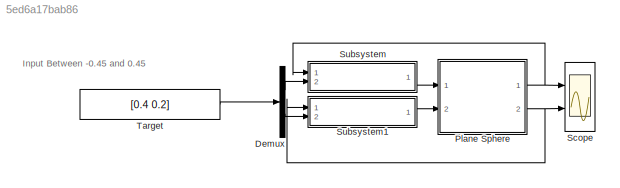
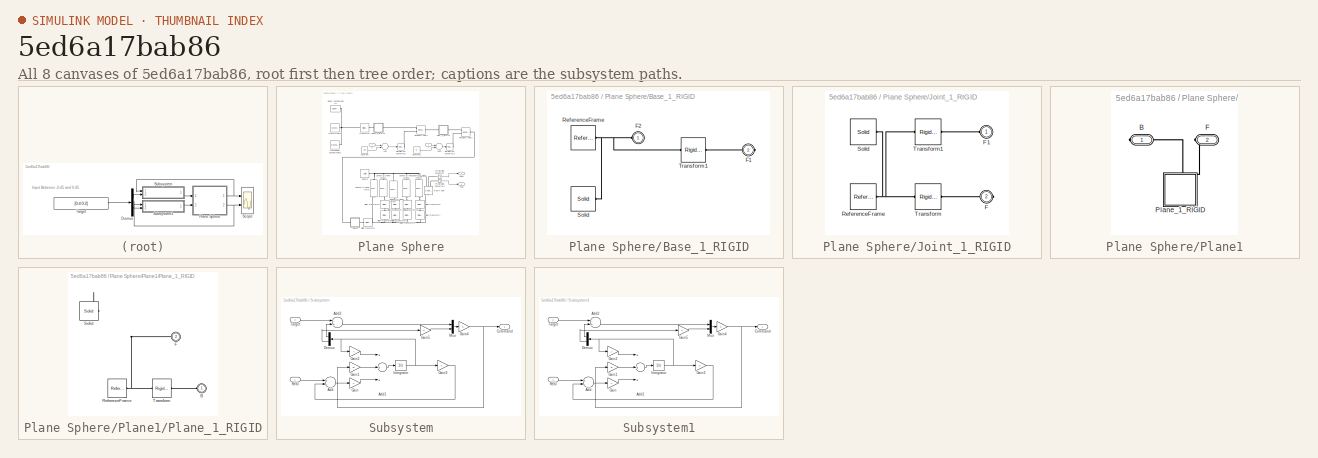
[diagram: thumbnail index - all 8 canvases of the model, root first then tree order]
MODEL slx_5ed6a17bab86
KIND model
CONFIG AbsTol = auto
CONFIG EnableMultiTasking = off
CONFIG FixedStep = auto
CONFIG MaxStep = auto
CONFIG MinStep = auto
CONFIG RelTol = 1e-3
CONFIG SampleTimeConstraint = Unconstrained
CONFIG Solver = ode15s
CONFIG SolverName = ode15s
CONFIG StartTime = 0.0
CONFIG StopTime = 10
WORKSPACE source: external: MATLAB File  (data not in archive)
BLOCK [Demux] Demux
  DisplayOption = bar
  Outputs = 2
  Ports = [1, 2]
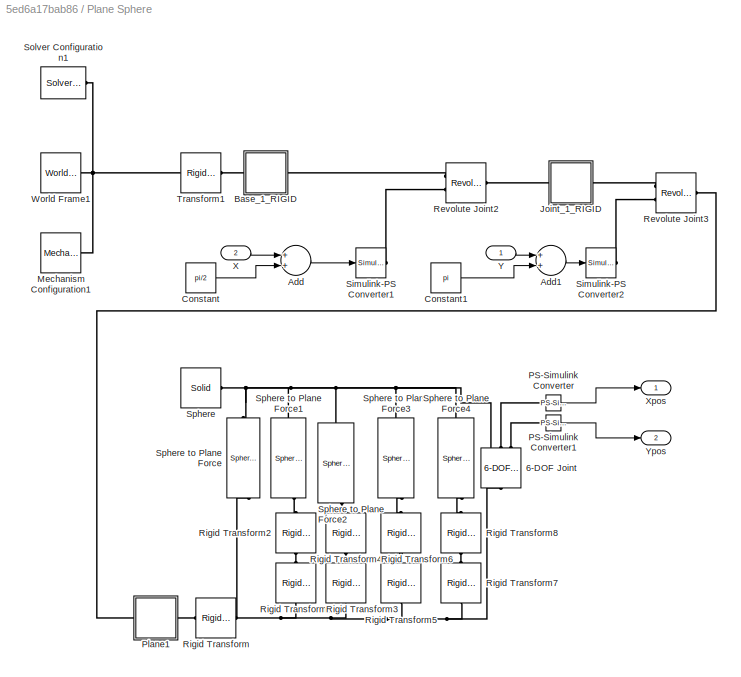
BLOCK [SubSystem] Plane Sphere
  Ports = [2, 2]
  RequestExecContextInheritance = off
BLOCK [Reference] Plane Sphere/6-DOF Joint  REF=sm_lib/Joints/6-DOF Joint
  Ports = [0, 0, 0, 0, 0, 1, 3]
  SourceBlock = sm_lib/Joints/6-DOF Joint
  SourceProductBaseCode = MS
  SourceProductName = Simscape Multibody
  SourceType = 6-DOF Joint
BLOCK [Sum] Plane Sphere/Add
  InputSameDT = off
  OutDataTypeStr = Inherit: Inherit via internal rule
  Ports = [2, 1]
  SaturateOnIntegerOverflow = off
BLOCK [Sum] Plane Sphere/Add1
  InputSameDT = off
  OutDataTypeStr = Inherit: Inherit via internal rule
  Ports = [2, 1]
  SaturateOnIntegerOverflow = off
BLOCK [SubSystem] Plane Sphere/Base_1_RIGID
  Ports = [0, 0, 0, 0, 0, 1, 1]
  RequestExecContextInheritance = off
BLOCK [PMIOPort] Plane Sphere/Base_1_RIGID/F1
  Port = 2
  Side = Right
BLOCK [PMIOPort] Plane Sphere/Base_1_RIGID/F2
  Side = Left
BLOCK [Reference] Plane Sphere/Base_1_RIGID/ReferenceFrame  REF=sm_lib/Frames and
Transforms/Reference
Frame
  Ports = [0, 0, 0, 0, 0, 0, 1]
  SourceBlock = sm_lib/Frames and\nTransforms/Reference\nFrame
  SourceProductBaseCode = MS
  SourceProductName = Simscape Multibody
  SourceType = Reference\nFrame
BLOCK [Reference] Plane Sphere/Base_1_RIGID/Solid  REF=sm_lib/Body Elements/Solid
  Ports = [0, 0, 0, 0, 0, 0, 1]
  SourceBlock = sm_lib/Body Elements/Solid
  SourceProductBaseCode = MS
  SourceProductName = Simscape Multibody
  SourceType = Solid
BLOCK [Reference] Plane Sphere/Base_1_RIGID/Transform1  REF=sm_lib/Frames and
Transforms/Rigid
Transform
  Ports = [0, 0, 0, 0, 0, 1, 1]
  SourceBlock = sm_lib/Frames and\nTransforms/Rigid\nTransform
  SourceProductBaseCode = MS
  SourceProductName = Simscape Multibody
  SourceType = Rigid\nTransform
BLOCK [Constant] Plane Sphere/Constant
  Value = pi/2
BLOCK [Constant] Plane Sphere/Constant1
  Value = pi
BLOCK [SubSystem] Plane Sphere/Joint_1_RIGID
  Ports = [0, 0, 0, 0, 0, 1, 1]
  RequestExecContextInheritance = off
BLOCK [PMIOPort] Plane Sphere/Joint_1_RIGID/F
  Port = 2
  Side = Right
BLOCK [PMIOPort] Plane Sphere/Joint_1_RIGID/F1
  Side = Left
BLOCK [Reference] Plane Sphere/Joint_1_RIGID/ReferenceFrame  REF=sm_lib/Frames and
Transforms/Reference
Frame
  Ports = [0, 0, 0, 0, 0, 0, 1]
  SourceBlock = sm_lib/Frames and\nTransforms/Reference\nFrame
  SourceProductBaseCode = MS
  SourceProductName = Simscape Multibody
  SourceType = Reference\nFrame
BLOCK [Reference] Plane Sphere/Joint_1_RIGID/Solid  REF=sm_lib/Body Elements/Solid
  Ports = [0, 0, 0, 0, 0, 0, 1]
  SourceBlock = sm_lib/Body Elements/Solid
  SourceProductBaseCode = MS
  SourceProductName = Simscape Multibody
  SourceType = Solid
BLOCK [Reference] Plane Sphere/Joint_1_RIGID/Transform  REF=sm_lib/Frames and
Transforms/Rigid
Transform
  Ports = [0, 0, 0, 0, 0, 1, 1]
  SourceBlock = sm_lib/Frames and\nTransforms/Rigid\nTransform
  SourceProductBaseCode = MS
  SourceProductName = Simscape Multibody
  SourceType = Rigid\nTransform
BLOCK [Reference] Plane Sphere/Joint_1_RIGID/Transform1  REF=sm_lib/Frames and
Transforms/Rigid
Transform
  Ports = [0, 0, 0, 0, 0, 1, 1]
  SourceBlock = sm_lib/Frames and\nTransforms/Rigid\nTransform
  SourceProductBaseCode = MS
  SourceProductName = Simscape Multibody
  SourceType = Rigid\nTransform
BLOCK [Reference] Plane Sphere/Mechanism Configuration1  REF=sm_lib/Utilities/Mechanism
Configuration
  Ports = [0, 0, 0, 0, 0, 0, 1]
  SourceBlock = sm_lib/Utilities/Mechanism\nConfiguration
  SourceProductBaseCode = MS
  SourceProductName = Simscape Multibody
  SourceType = Mechanism\nConfiguration
BLOCK [Reference] Plane Sphere/PS-Simulink Converter  REF=nesl_utility/PS-Simulink
Converter
  Ports = [0, 1, 0, 0, 0, 1]
  SourceBlock = nesl_utility/PS-Simulink\nConverter
  SourceProductBaseCode = SS
  SourceProductName = Simscape
  SourceType = PS-Simulink\nConverter
BLOCK [Reference] Plane Sphere/PS-Simulink Converter1  REF=nesl_utility/PS-Simulink
Converter
  Ports = [0, 1, 0, 0, 0, 1]
  SourceBlock = nesl_utility/PS-Simulink\nConverter
  SourceProductBaseCode = SS
  SourceProductName = Simscape
  SourceType = PS-Simulink\nConverter
BLOCK [SubSystem] Plane Sphere/Plane1
  Ports = [0, 0, 0, 0, 0, 1, 1]
  RequestExecContextInheritance = off
  Tag = CustomStyle
BLOCK [PMIOPort] Plane Sphere/Plane1/B
  Side = Right
BLOCK [PMIOPort] Plane Sphere/Plane1/F
  Port = 2
  Side = Left
BLOCK [SubSystem] Plane Sphere/Plane1/Plane_1_RIGID
  Ports = [0, 0, 0, 0, 0, 2]
  RequestExecContextInheritance = off
BLOCK [PMIOPort] Plane Sphere/Plane1/Plane_1_RIGID/B
  Side = Left
BLOCK [PMIOPort] Plane Sphere/Plane1/Plane_1_RIGID/F
  Port = 2
  Side = Left
BLOCK [Reference] Plane Sphere/Plane1/Plane_1_RIGID/ReferenceFrame  REF=sm_lib/Frames and
Transforms/Reference
Frame
  Ports = [0, 0, 0, 0, 0, 0, 1]
  SourceBlock = sm_lib/Frames and\nTransforms/Reference\nFrame
  SourceProductBaseCode = MS
  SourceProductName = Simscape Multibody
  SourceType = Reference\nFrame
BLOCK [Reference] Plane Sphere/Plane1/Plane_1_RIGID/Solid  REF=sm_lib/Body Elements/Solid
  Ports = [0, 0, 0, 0, 0, 0, 1]
  SourceBlock = sm_lib/Body Elements/Solid
  SourceProductBaseCode = MS
  SourceProductName = Simscape Multibody
  SourceType = Solid
BLOCK [Reference] Plane Sphere/Plane1/Plane_1_RIGID/Transform  REF=sm_lib/Frames and
Transforms/Rigid
Transform
  Ports = [0, 0, 0, 0, 0, 1, 1]
  SourceBlock = sm_lib/Frames and\nTransforms/Rigid\nTransform
  SourceProductBaseCode = MS
  SourceProductName = Simscape Multibody
  SourceType = Rigid\nTransform
BLOCK [Reference] Plane Sphere/Revolute Joint2  REF=sm_lib/Joints/Revolute Joint
  Ports = [0, 0, 0, 0, 0, 2, 1]
  SourceBlock = sm_lib/Joints/Revolute Joint
  SourceProductBaseCode = MS
  SourceProductName = Simscape Multibody
  SourceType = Revolute Joint
BLOCK [Reference] Plane Sphere/Revolute Joint3  REF=sm_lib/Joints/Revolute Joint
  Ports = [0, 0, 0, 0, 0, 2, 1]
  SourceBlock = sm_lib/Joints/Revolute Joint
  SourceProductBaseCode = MS
  SourceProductName = Simscape Multibody
  SourceType = Revolute Joint
BLOCK [Reference] Plane Sphere/Rigid Transform  REF=sm_lib/Frames and
Transforms/Rigid
Transform
  Ports = [0, 0, 0, 0, 0, 1, 1]
  SourceBlock = sm_lib/Frames and\nTransforms/Rigid\nTransform
  SourceProductBaseCode = MS
  SourceProductName = Simscape Multibody
  SourceType = Rigid\nTransform
BLOCK [Reference] Plane Sphere/Rigid Transform1  REF=sm_lib/Frames and
Transforms/Rigid
Transform
  Ports = [0, 0, 0, 0, 0, 1, 1]
  SourceBlock = sm_lib/Frames and\nTransforms/Rigid\nTransform
  SourceProductBaseCode = MS
  SourceProductName = Simscape Multibody
  SourceType = Rigid\nTransform
BLOCK [Reference] Plane Sphere/Rigid Transform2  REF=sm_lib/Frames and
Transforms/Rigid
Transform
  Ports = [0, 0, 0, 0, 0, 1, 1]
  SourceBlock = sm_lib/Frames and\nTransforms/Rigid\nTransform
  SourceProductBaseCode = MS
  SourceProductName = Simscape Multibody
  SourceType = Rigid\nTransform
BLOCK [Reference] Plane Sphere/Rigid Transform3  REF=sm_lib/Frames and
Transforms/Rigid
Transform
  Ports = [0, 0, 0, 0, 0, 1, 1]
  SourceBlock = sm_lib/Frames and\nTransforms/Rigid\nTransform
  SourceProductBaseCode = MS
  SourceProductName = Simscape Multibody
  SourceType = Rigid\nTransform
BLOCK [Reference] Plane Sphere/Rigid Transform4  REF=sm_lib/Frames and
Transforms/Rigid
Transform
  Ports = [0, 0, 0, 0, 0, 1, 1]
  SourceBlock = sm_lib/Frames and\nTransforms/Rigid\nTransform
  SourceProductBaseCode = MS
  SourceProductName = Simscape Multibody
  SourceType = Rigid\nTransform
BLOCK [Reference] Plane Sphere/Rigid Transform5  REF=sm_lib/Frames and
Transforms/Rigid
Transform
  Ports = [0, 0, 0, 0, 0, 1, 1]
  SourceBlock = sm_lib/Frames and\nTransforms/Rigid\nTransform
  SourceProductBaseCode = MS
  SourceProductName = Simscape Multibody
  SourceType = Rigid\nTransform
BLOCK [Reference] Plane Sphere/Rigid Transform6  REF=sm_lib/Frames and
Transforms/Rigid
Transform
  Ports = [0, 0, 0, 0, 0, 1, 1]
  SourceBlock = sm_lib/Frames and\nTransforms/Rigid\nTransform
  SourceProductBaseCode = MS
  SourceProductName = Simscape Multibody
  SourceType = Rigid\nTransform
BLOCK [Reference] Plane Sphere/Rigid Transform7  REF=sm_lib/Frames and
Transforms/Rigid
Transform
  Ports = [0, 0, 0, 0, 0, 1, 1]
  SourceBlock = sm_lib/Frames and\nTransforms/Rigid\nTransform
  SourceProductBaseCode = MS
  SourceProductName = Simscape Multibody
  SourceType = Rigid\nTransform
BLOCK [Reference] Plane Sphere/Rigid Transform8  REF=sm_lib/Frames and
Transforms/Rigid
Transform
  Ports = [0, 0, 0, 0, 0, 1, 1]
  SourceBlock = sm_lib/Frames and\nTransforms/Rigid\nTransform
  SourceProductBaseCode = MS
  SourceProductName = Simscape Multibody
  SourceType = Rigid\nTransform
BLOCK [Reference] Plane Sphere/Simulink-PS Converter1  REF=nesl_utility/Simulink-PS
Converter
  Ports = [1, 0, 0, 0, 0, 0, 1]
  SourceBlock = nesl_utility/Simulink-PS\nConverter
  SourceProductBaseCode = SS
  SourceProductName = Simscape
  SourceType = Simulink-PS\nConverter
BLOCK [Reference] Plane Sphere/Simulink-PS Converter2  REF=nesl_utility/Simulink-PS
Converter
  Ports = [1, 0, 0, 0, 0, 0, 1]
  SourceBlock = nesl_utility/Simulink-PS\nConverter
  SourceProductBaseCode = SS
  SourceProductName = Simscape
  SourceType = Simulink-PS\nConverter
BLOCK [Reference] Plane Sphere/Solver Configuration1  REF=nesl_utility/Solver
Configuration
  Ports = [0, 0, 0, 0, 0, 0, 1]
  SourceBlock = nesl_utility/Solver\nConfiguration
  SourceProductBaseCode = SS
  SourceProductName = Simscape
  SourceType = Solver\nConfiguration
BLOCK [Reference] Plane Sphere/Sphere  REF=sm_lib/Body Elements/Solid
  Ports = [0, 0, 0, 0, 0, 0, 1]
  SourceBlock = sm_lib/Body Elements/Solid
  SourceProductBaseCode = MS
  SourceProductName = Simscape Multibody
  SourceType = Solid
BLOCK [Reference] Plane Sphere/Sphere to Plane Force  REF=Contact_Forces_Lib/3D/Sphere to Plane Force
  Ports = [0, 1, 0, 0, 0, 1, 1]
  SourceBlock = Contact_Forces_Lib/3D/Sphere to Plane Force
  SourceProductName = Simscape Multibody Contact Forces Library
  SourceType = Sphere to Plane Force
BLOCK [Reference] Plane Sphere/Sphere to Plane Force1  REF=Contact_Forces_Lib/3D/Sphere to Plane Force
  Ports = [0, 1, 0, 0, 0, 1, 1]
  SourceBlock = Contact_Forces_Lib/3D/Sphere to Plane Force
  SourceProductName = Simscape Multibody Contact Forces Library
  SourceType = Sphere to Plane Force
BLOCK [Reference] Plane Sphere/Sphere to Plane Force2  REF=Contact_Forces_Lib/3D/Sphere to Plane Force
  Ports = [0, 1, 0, 0, 0, 1, 1]
  SourceBlock = Contact_Forces_Lib/3D/Sphere to Plane Force
  SourceProductName = Simscape Multibody Contact Forces Library
  SourceType = Sphere to Plane Force
BLOCK [Reference] Plane Sphere/Sphere to Plane Force3  REF=Contact_Forces_Lib/3D/Sphere to Plane Force
  Ports = [0, 1, 0, 0, 0, 1, 1]
  SourceBlock = Contact_Forces_Lib/3D/Sphere to Plane Force
  SourceProductName = Simscape Multibody Contact Forces Library
  SourceType = Sphere to Plane Force
BLOCK [Reference] Plane Sphere/Sphere to Plane Force4  REF=Contact_Forces_Lib/3D/Sphere to Plane Force
  Ports = [0, 1, 0, 0, 0, 1, 1]
  SourceBlock = Contact_Forces_Lib/3D/Sphere to Plane Force
  SourceProductName = Simscape Multibody Contact Forces Library
  SourceType = Sphere to Plane Force
BLOCK [Reference] Plane Sphere/Transform1  REF=sm_lib/Frames and
Transforms/Rigid
Transform
  Ports = [0, 0, 0, 0, 0, 1, 1]
  SourceBlock = sm_lib/Frames and\nTransforms/Rigid\nTransform
  SourceProductBaseCode = MS
  SourceProductName = Simscape Multibody
  SourceType = Rigid\nTransform
BLOCK [Reference] Plane Sphere/World Frame1  REF=sm_lib/Frames and
Transforms/World Frame
  Ports = [0, 0, 0, 0, 0, 0, 1]
  SourceBlock = sm_lib/Frames and\nTransforms/World Frame
  SourceProductBaseCode = MS
  SourceProductName = Simscape Multibody
  SourceType = World Frame
BLOCK [Inport] Plane Sphere/X
  IconDisplay = Port number
  Port = 2
BLOCK [Outport] Plane Sphere/Xpos
  IconDisplay = Port number
BLOCK [Inport] Plane Sphere/Y
  IconDisplay = Port number
BLOCK [Outport] Plane Sphere/Ypos
  IconDisplay = Port number
  Port = 2
BLOCK [Scope] Scope
  Floating = off
  NumInputPorts = 2
  Ports = [2]
  ScopeSpecificationString = Simulink.scopes.TimeScopeBlockCfg('CurrentConfiguration', extmgr.ConfigurationSet(extmgr.Configuration('Core','General UI',true),extmgr.Configuration('Core','Source UI',true),extmgr.Configuration('Sources','WiredSimulink',true),extmgr.Configuration('Visuals','Time Domain',true,'SerializedDisplays',{struct('MinYLimReal','-0.05226','MaxYLimReal','0.46259','YLabelReal','','MinYLimMag','0.00000','MaxY...<+2084ch>
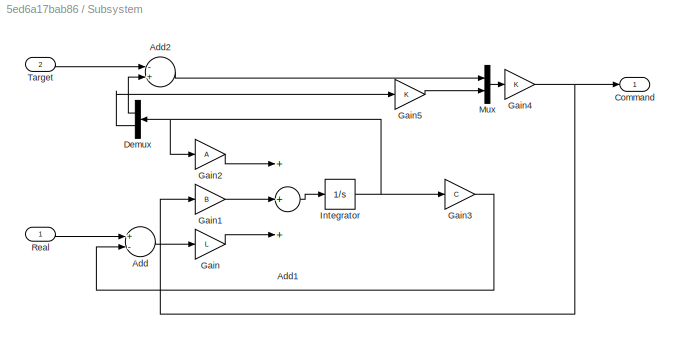
BLOCK [SubSystem] Subsystem
  Ports = [2, 1]
  RequestExecContextInheritance = off
BLOCK [Sum] Subsystem/Add
  InputSameDT = off
  Inputs = +-
  OutDataTypeStr = Inherit: Inherit via internal rule
  Ports = [2, 1]
  SaturateOnIntegerOverflow = off
BLOCK [Sum] Subsystem/Add1
  InputSameDT = off
  Inputs = +++
  OutDataTypeStr = Inherit: Inherit via internal rule
  Ports = [3, 1]
  SaturateOnIntegerOverflow = off
BLOCK [Sum] Subsystem/Add2
  InputSameDT = off
  Inputs = -+
  OutDataTypeStr = Inherit: Inherit via internal rule
  Ports = [2, 1]
  SaturateOnIntegerOverflow = off
BLOCK [Outport] Subsystem/Command
  IconDisplay = Port number
BLOCK [Demux] Subsystem/Demux
  DisplayOption = bar
  Outputs = 2
  Ports = [1, 2]
BLOCK [Gain] Subsystem/Gain
  Gain = L
  Multiplication = Matrix(K*u)
  OutDataTypeStr = Inherit: Inherit via internal rule
  ParamDataTypeStr = Inherit: Inherit via internal rule
  SaturateOnIntegerOverflow = off
BLOCK [Gain] Subsystem/Gain1
  Gain = B
  Multiplication = Matrix(K*u)
  OutDataTypeStr = Inherit: Inherit via internal rule
  ParamDataTypeStr = Inherit: Inherit via internal rule
  SaturateOnIntegerOverflow = off
BLOCK [Gain] Subsystem/Gain2
  Gain = A
  Multiplication = Matrix(K*u)
  OutDataTypeStr = Inherit: Inherit via internal rule
  ParamDataTypeStr = Inherit: Inherit via internal rule
  SaturateOnIntegerOverflow = off
BLOCK [Gain] Subsystem/Gain3
  Gain = C
  Multiplication = Matrix(K*u)
  OutDataTypeStr = Inherit: Inherit via internal rule
  ParamDataTypeStr = Inherit: Inherit via internal rule
  SaturateOnIntegerOverflow = off
BLOCK [Gain] Subsystem/Gain4
  Gain = K
  Multiplication = Matrix(K*u)
  OutDataTypeStr = Inherit: Inherit via internal rule
  ParamDataTypeStr = Inherit: Inherit via internal rule
  SaturateOnIntegerOverflow = off
BLOCK [Gain] Subsystem/Gain5
  OutDataTypeStr = Inherit: Inherit via internal rule
  ParamDataTypeStr = Inherit: Inherit via internal rule
  SaturateOnIntegerOverflow = off
BLOCK [Integrator] Subsystem/Integrator
  Ports = [1, 1]
BLOCK [Mux] Subsystem/Mux
  DisplayOption = bar
  Inputs = 2
  Ports = [2, 1]
BLOCK [Inport] Subsystem/Real
  IconDisplay = Port number
BLOCK [Inport] Subsystem/Target
  IconDisplay = Port number
  Port = 2
BLOCK [SubSystem] Subsystem1
  Ports = [2, 1]
  RequestExecContextInheritance = off
BLOCK [Sum] Subsystem1/Add
  InputSameDT = off
  Inputs = +-
  OutDataTypeStr = Inherit: Inherit via internal rule
  Ports = [2, 1]
  SaturateOnIntegerOverflow = off
BLOCK [Sum] Subsystem1/Add1
  InputSameDT = off
  Inputs = +++
  OutDataTypeStr = Inherit: Inherit via internal rule
  Ports = [3, 1]
  SaturateOnIntegerOverflow = off
BLOCK [Sum] Subsystem1/Add2
  InputSameDT = off
  Inputs = -+
  OutDataTypeStr = Inherit: Inherit via internal rule
  Ports = [2, 1]
  SaturateOnIntegerOverflow = off
BLOCK [Outport] Subsystem1/Command
  IconDisplay = Port number
BLOCK [Demux] Subsystem1/Demux
  DisplayOption = bar
  Outputs = 2
  Ports = [1, 2]
BLOCK [Gain] Subsystem1/Gain
  Gain = L
  Multiplication = Matrix(K*u)
  OutDataTypeStr = Inherit: Inherit via internal rule
  ParamDataTypeStr = Inherit: Inherit via internal rule
  SaturateOnIntegerOverflow = off
BLOCK [Gain] Subsystem1/Gain1
  Gain = B
  Multiplication = Matrix(K*u)
  OutDataTypeStr = Inherit: Inherit via internal rule
  ParamDataTypeStr = Inherit: Inherit via internal rule
  SaturateOnIntegerOverflow = off
BLOCK [Gain] Subsystem1/Gain2
  Gain = A
  Multiplication = Matrix(K*u)
  OutDataTypeStr = Inherit: Inherit via internal rule
  ParamDataTypeStr = Inherit: Inherit via internal rule
  SaturateOnIntegerOverflow = off
BLOCK [Gain] Subsystem1/Gain3
  Gain = C
  Multiplication = Matrix(K*u)
  OutDataTypeStr = Inherit: Inherit via internal rule
  ParamDataTypeStr = Inherit: Inherit via internal rule
  SaturateOnIntegerOverflow = off
BLOCK [Gain] Subsystem1/Gain4
  Gain = K
  Multiplication = Matrix(K*u)
  OutDataTypeStr = Inherit: Inherit via internal rule
  ParamDataTypeStr = Inherit: Inherit via internal rule
  SaturateOnIntegerOverflow = off
BLOCK [Gain] Subsystem1/Gain5
  OutDataTypeStr = Inherit: Inherit via internal rule
  ParamDataTypeStr = Inherit: Inherit via internal rule
  SaturateOnIntegerOverflow = off
BLOCK [Integrator] Subsystem1/Integrator
  Ports = [1, 1]
BLOCK [Mux] Subsystem1/Mux
  DisplayOption = bar
  Inputs = 2
  Ports = [2, 1]
BLOCK [Inport] Subsystem1/Real
  IconDisplay = Port number
BLOCK [Inport] Subsystem1/Target
  IconDisplay = Port number
  Port = 2
BLOCK [Constant] Target
  Value = [0.4 0.2]
ANNOTATION (root): Input Between -0.45 and 0.45
LINE Demux:1 -> Subsystem:2
LINE Demux:2 -> Subsystem1:2
LINE Plane Sphere/Add1:1 -> Plane Sphere/Simulink-PS Converter2:1
LINE Plane Sphere/Add:1 -> Plane Sphere/Simulink-PS Converter1:1
LINE Plane Sphere/Constant1:1 -> Plane Sphere/Add1:2
LINE Plane Sphere/Constant:1 -> Plane Sphere/Add:2
LINE Plane Sphere/PS-Simulink Converter1:1 -> Plane Sphere/Ypos:1
LINE Plane Sphere/PS-Simulink Converter:1 -> Plane Sphere/Xpos:1
LINE Plane Sphere/X:1 -> Plane Sphere/Add:1
LINE Plane Sphere/Y:1 -> Plane Sphere/Add1:1
NET Plane Sphere:1 -> Scope:1, Subsystem:1
NET Plane Sphere:2 -> Scope:2, Subsystem1:1
LINE Subsystem/Add1:1 -> Subsystem/Integrator:1
LINE Subsystem/Add2:1 -> Subsystem/Mux:1
LINE Subsystem/Add:1 -> Subsystem/Gain:1
LINE Subsystem/Demux:1 -> Subsystem/Add2:2
LINE Subsystem/Demux:2 -> Subsystem/Gain5:1
LINE Subsystem/Gain1:1 -> Subsystem/Add1:2
LINE Subsystem/Gain2:1 -> Subsystem/Add1:1
LINE Subsystem/Gain3:1 -> Subsystem/Add:2
NET Subsystem/Gain4:1 -> Subsystem/Command:1, Subsystem/Gain1:1
LINE Subsystem/Gain5:1 -> Subsystem/Mux:2
LINE Subsystem/Gain:1 -> Subsystem/Add1:3
NET Subsystem/Integrator:1 -> Subsystem/Demux:1, Subsystem/Gain2:1, Subsystem/Gain3:1
LINE Subsystem/Mux:1 -> Subsystem/Gain4:1
LINE Subsystem/Real:1 -> Subsystem/Add:1
LINE Subsystem/Target:1 -> Subsystem/Add2:1
LINE Subsystem1/Add1:1 -> Subsystem1/Integrator:1
LINE Subsystem1/Add2:1 -> Subsystem1/Mux:1
LINE Subsystem1/Add:1 -> Subsystem1/Gain:1
LINE Subsystem1/Demux:1 -> Subsystem1/Add2:2
LINE Subsystem1/Demux:2 -> Subsystem1/Gain5:1
LINE Subsystem1/Gain1:1 -> Subsystem1/Add1:2
LINE Subsystem1/Gain2:1 -> Subsystem1/Add1:1
LINE Subsystem1/Gain3:1 -> Subsystem1/Add:2
NET Subsystem1/Gain4:1 -> Subsystem1/Command:1, Subsystem1/Gain1:1
LINE Subsystem1/Gain5:1 -> Subsystem1/Mux:2
LINE Subsystem1/Gain:1 -> Subsystem1/Add1:3
NET Subsystem1/Integrator:1 -> Subsystem1/Demux:1, Subsystem1/Gain2:1, Subsystem1/Gain3:1
LINE Subsystem1/Mux:1 -> Subsystem1/Gain4:1
LINE Subsystem1/Real:1 -> Subsystem1/Add:1
LINE Subsystem1/Target:1 -> Subsystem1/Add2:1
LINE Subsystem1:1 -> Plane Sphere:2
LINE Subsystem:1 -> Plane Sphere:1
LINE Target:1 -> Demux:1
PNET net1: Plane Sphere/6-DOF Joint:LConn1 -- Plane Sphere/Rigid Transform1:LConn1 -- Plane Sphere/Rigid Transform3:LConn1 -- Plane Sphere/Rigid Transform5:LConn1 -- Plane Sphere/Rigid Transform7:LConn1 -- Plane Sphere/Rigid Transform:RConn1 -- Plane Sphere/Sphere to Plane Force:RConn1
PNET net2: Plane Sphere/6-DOF Joint:RConn1 -- Plane Sphere/Sphere to Plane Force1:LConn1 -- Plane Sphere/Sphere to Plane Force2:LConn1 -- Plane Sphere/Sphere to Plane Force3:LConn1 -- Plane Sphere/Sphere to Plane Force4:LConn1 -- Plane Sphere/Sphere to Plane Force:LConn1 -- Plane Sphere/Sphere:RConn1
PLINE Plane Sphere/6-DOF Joint:RConn2 -- Plane Sphere/PS-Simulink Converter:LConn1
PLINE Plane Sphere/6-DOF Joint:RConn3 -- Plane Sphere/PS-Simulink Converter1:LConn1
PLINE Plane Sphere/Base_1_RIGID/F1:RConn1 -- Plane Sphere/Base_1_RIGID/Transform1:RConn1
PNET net3: Plane Sphere/Base_1_RIGID/F2:RConn1 -- Plane Sphere/Base_1_RIGID/ReferenceFrame:RConn1 -- Plane Sphere/Base_1_RIGID/Solid:RConn1 -- Plane Sphere/Base_1_RIGID/Transform1:LConn1
PLINE Plane Sphere/Base_1_RIGID:LConn1 -- Plane Sphere/Transform1:RConn1
PLINE Plane Sphere/Base_1_RIGID:RConn1 -- Plane Sphere/Revolute Joint2:LConn1
PLINE Plane Sphere/Joint_1_RIGID/F1:RConn1 -- Plane Sphere/Joint_1_RIGID/Transform1:RConn1
PLINE Plane Sphere/Joint_1_RIGID/F:RConn1 -- Plane Sphere/Joint_1_RIGID/Transform:RConn1
PNET net4: Plane Sphere/Joint_1_RIGID/ReferenceFrame:RConn1 -- Plane Sphere/Joint_1_RIGID/Solid:RConn1 -- Plane Sphere/Joint_1_RIGID/Transform1:LConn1 -- Plane Sphere/Joint_1_RIGID/Transform:LConn1
PLINE Plane Sphere/Joint_1_RIGID:LConn1 -- Plane Sphere/Revolute Joint2:RConn1
PLINE Plane Sphere/Joint_1_RIGID:RConn1 -- Plane Sphere/Revolute Joint3:LConn1
PNET net5: Plane Sphere/Mechanism Configuration1:RConn1 -- Plane Sphere/Solver Configuration1:RConn1 -- Plane Sphere/Transform1:LConn1 -- Plane Sphere/World Frame1:RConn1
PLINE Plane Sphere/Plane1/B:RConn1 -- Plane Sphere/Plane1/Plane_1_RIGID:LConn1
PLINE Plane Sphere/Plane1/F:RConn1 -- Plane Sphere/Plane1/Plane_1_RIGID:LConn2
PLINE Plane Sphere/Plane1/Plane_1_RIGID/B:RConn1 -- Plane Sphere/Plane1/Plane_1_RIGID/Transform:RConn1
PNET net6: Plane Sphere/Plane1/Plane_1_RIGID/F:RConn1 -- Plane Sphere/Plane1/Plane_1_RIGID/ReferenceFrame:RConn1 -- Plane Sphere/Plane1/Plane_1_RIGID/Solid:RConn1 -- Plane Sphere/Plane1/Plane_1_RIGID/Transform:LConn1
PLINE Plane Sphere/Plane1:LConn1 -- Plane Sphere/Rigid Transform:LConn1
PLINE Plane Sphere/Plane1:RConn1 -- Plane Sphere/Revolute Joint3:RConn1
PLINE Plane Sphere/Revolute Joint2:LConn2 -- Plane Sphere/Simulink-PS Converter1:RConn1
PLINE Plane Sphere/Revolute Joint3:LConn2 -- Plane Sphere/Simulink-PS Converter2:RConn1
PLINE Plane Sphere/Rigid Transform1:RConn1 -- Plane Sphere/Rigid Transform2:LConn1
PLINE Plane Sphere/Rigid Transform2:RConn1 -- Plane Sphere/Sphere to Plane Force1:RConn1
PLINE Plane Sphere/Rigid Transform3:RConn1 -- Plane Sphere/Rigid Transform4:LConn1
PLINE Plane Sphere/Rigid Transform4:RConn1 -- Plane Sphere/Sphere to Plane Force2:RConn1
PLINE Plane Sphere/Rigid Transform5:RConn1 -- Plane Sphere/Rigid Transform6:LConn1
PLINE Plane Sphere/Rigid Transform6:RConn1 -- Plane Sphere/Sphere to Plane Force3:RConn1
PLINE Plane Sphere/Rigid Transform7:RConn1 -- Plane Sphere/Rigid Transform8:LConn1
PLINE Plane Sphere/Rigid Transform8:RConn1 -- Plane Sphere/Sphere to Plane Force4:RConn1
note: NET lines group one-source signal fan-out (src -> all destinations, sorted); 1:1 wires keep LINE; PNET lines group multi-terminal physical nets as a canonical sorted terminal list (undirected conserving connections); 2-terminal nets keep the pairwise PLINE form
